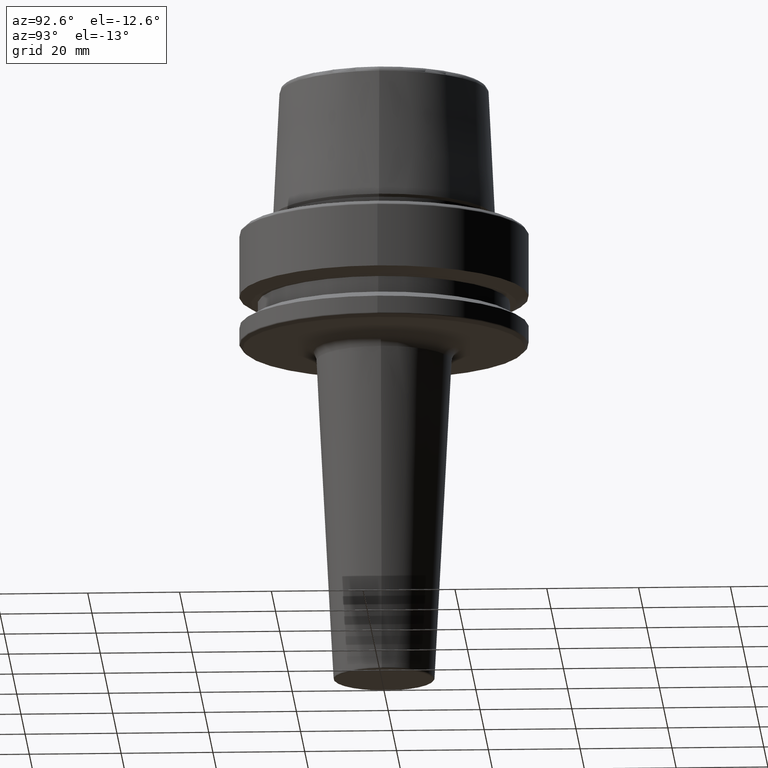
[diagram: clean part render]
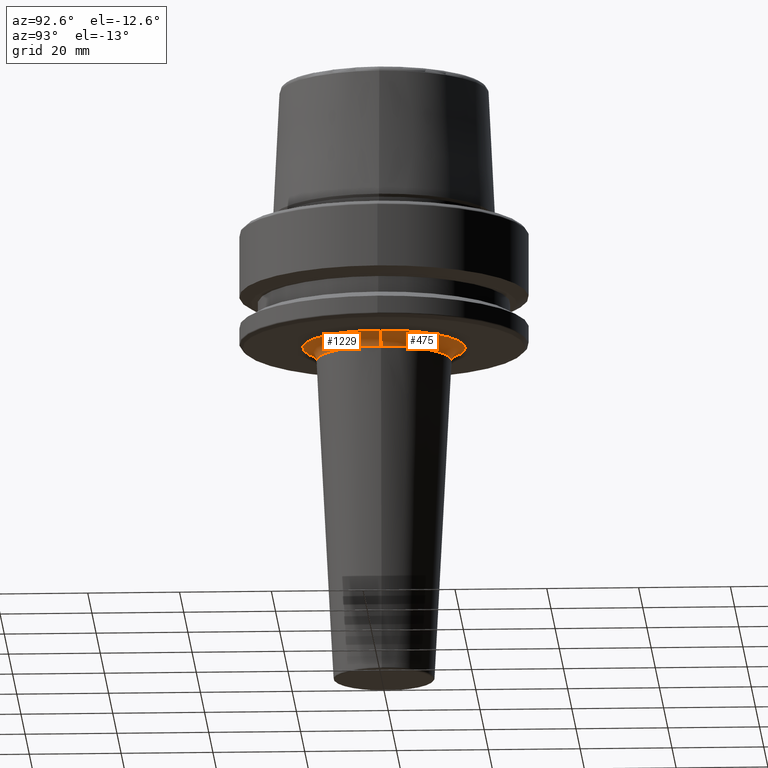
[diagram: same view with one multi-face feature highlighted, each face labeled with its STEP entity id]
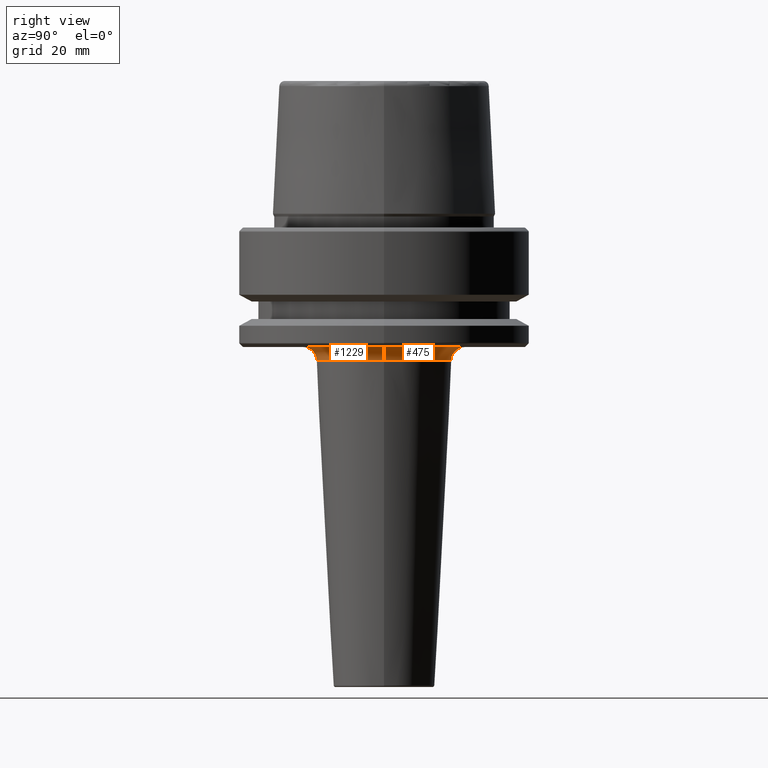
[diagram: same view with one multi-face feature highlighted, each face labeled with its STEP entity id]
A machine part, auxiliary view. The highlighted faces form ONE feature: a constant-radius fillet chain: 2 tangent blend faces with common blend radius 3 mm. The faces share edges in the B-rep.
A second angle (right view) of the same feature is appended — it is thin or edge-on in the first view.
Their STEP definitions:
[1] entity #475 (Torus):
#12 = EDGE_LOOP ( 'NONE', ( #120, #148, #1257, #715 ) ) ;
#48 = EDGE_CURVE ( 'NONE', #471, #1074, #566, .T. ) ;
#54 = CARTESIAN_POINT ( 'NONE',  ( 0.0000000000000000000, 0.0000000000000000000, -28.99999999999999600 ) ) ;
#73 = DIRECTION ( 'NONE',  ( 1.000000000000000000, 0.0000000000000000000, 0.0000000000000000000 ) ) ;
#120 = ORIENTED_EDGE ( 'NONE', *, *, #1073, .F. ) ;
#148 = ORIENTED_EDGE ( 'NONE', *, *, #956, .F. ) ;
#225 = CIRCLE ( 'NONE', #1255, 3.000000000000002700 ) ;
#258 = CARTESIAN_POINT ( 'NONE',  ( 17.72506936708969900, 0.0000000000000000000, -28.99999999999999600 ) ) ;
#295 = CARTESIAN_POINT ( 'NONE',  ( 14.72918076282597600, 0.0000000000000000000, -28.84299213127116700 ) ) ;
#373 = DIRECTION ( 'NONE',  ( 1.000000000000000000, 0.0000000000000000000, 0.0000000000000000000 ) ) ;
#381 = DIRECTION ( 'NONE',  ( 1.224646799147353200E-016, 1.000000000000000000, 0.0000000000000000000 ) ) ;
#399 = DIRECTION ( 'NONE',  ( -1.000000000000000000, 1.224646799147353500E-016, 0.0000000000000000000 ) ) ;
#403 = VERTEX_POINT ( 'NONE', #677 ) ;
#409 = CARTESIAN_POINT ( 'NONE',  ( -17.72506936708969900, 2.170694946507120400E-015, -28.99999999999999600 ) ) ;
#410 = CIRCLE ( 'NONE', #515, 2.999999999999999100 ) ;
#468 = CARTESIAN_POINT ( 'NONE',  ( -14.72918076282597600, 1.803804407525760100E-015, -28.84299213127116700 ) ) ;
#471 = VERTEX_POINT ( 'NONE', #468 ) ;
#475 = ADVANCED_FACE ( 'NONE', ( #670 ), #496, .F. ) ;
#496 = TOROIDAL_SURFACE ( 'NONE', #1168, 17.72506936708969900, 3.000000000000000000 ) ;
#504 = DIRECTION ( 'NONE',  ( 0.0000000000000000000, 0.0000000000000000000, -1.000000000000000000 ) ) ;
#508 = AXIS2_PLACEMENT_3D ( 'NONE', #596, #934, #373 ) ;
#515 = AXIS2_PLACEMENT_3D ( 'NONE', #409, #381, #399 ) ;
#566 = CIRCLE ( 'NONE', #508, 14.72918076282597800 ) ;
#571 = CARTESIAN_POINT ( 'NONE',  ( -17.72506936708969900, 2.170694946507120400E-015, -26.00000000000000400 ) ) ;
#596 = CARTESIAN_POINT ( 'NONE',  ( 0.0000000000000000000, 0.0000000000000000000, -28.84299213127116700 ) ) ;
#599 = VERTEX_POINT ( 'NONE', #571 ) ;
#644 = EDGE_CURVE ( 'NONE', #403, #1074, #225, .T. ) ;
#670 = FACE_OUTER_BOUND ( 'NONE', #12, .T. ) ;
#677 = CARTESIAN_POINT ( 'NONE',  ( 17.72506936708969900, 0.0000000000000000000, -26.00000000000000400 ) ) ;
#715 = ORIENTED_EDGE ( 'NONE', *, *, #48, .F. ) ;
#722 = CARTESIAN_POINT ( 'NONE',  ( 0.0000000000000000000, 0.0000000000000000000, -26.00000000000000700 ) ) ;
#798 = AXIS2_PLACEMENT_3D ( 'NONE', #722, #807, #823 ) ;
#807 = DIRECTION ( 'NONE',  ( -0.0000000000000000000, -0.0000000000000000000, 1.000000000000000000 ) ) ;
#823 = DIRECTION ( 'NONE',  ( 1.000000000000000000, 0.0000000000000000000, 0.0000000000000000000 ) ) ;
#854 = DIRECTION ( 'NONE',  ( 0.0000000000000000000, -1.000000000000000000, 0.0000000000000000000 ) ) ;
#934 = DIRECTION ( 'NONE',  ( 0.0000000000000000000, 0.0000000000000000000, -1.000000000000000000 ) ) ;
#956 = EDGE_CURVE ( 'NONE', #403, #599, #1209, .T. ) ;
#1073 = EDGE_CURVE ( 'NONE', #599, #471, #410, .T. ) ;
#1074 = VERTEX_POINT ( 'NONE', #295 ) ;
#1119 = DIRECTION ( 'NONE',  ( -0.0000000000000000000, -0.0000000000000000000, 1.000000000000000000 ) ) ;
#1168 = AXIS2_PLACEMENT_3D ( 'NONE', #54, #1119, #73 ) ;
#1209 = CIRCLE ( 'NONE', #798, 17.72506936708969900 ) ;
#1255 = AXIS2_PLACEMENT_3D ( 'NONE', #258, #854, #504 ) ;
#1257 = ORIENTED_EDGE ( 'NONE', *, *, #644, .T. ) ;
[2] entity #1229 (Torus):
#57 = DIRECTION ( 'NONE',  ( 0.0000000000000000000, 0.0000000000000000000, -1.000000000000000000 ) ) ;
#174 = ORIENTED_EDGE ( 'NONE', *, *, #1073, .T. ) ;
#208 = CIRCLE ( 'NONE', #765, 17.72506936708969900 ) ;
#225 = CIRCLE ( 'NONE', #1255, 3.000000000000002700 ) ;
#229 = ORIENTED_EDGE ( 'NONE', *, *, #550, .F. ) ;
#243 = EDGE_LOOP ( 'NONE', ( #229, #174, #518, #713 ) ) ;
#258 = CARTESIAN_POINT ( 'NONE',  ( 17.72506936708969900, 0.0000000000000000000, -28.99999999999999600 ) ) ;
#295 = CARTESIAN_POINT ( 'NONE',  ( 14.72918076282597600, 0.0000000000000000000, -28.84299213127116700 ) ) ;
#305 = TOROIDAL_SURFACE ( 'NONE', #1217, 17.72506936708969900, 3.000000000000000000 ) ;
#381 = DIRECTION ( 'NONE',  ( 1.224646799147353200E-016, 1.000000000000000000, 0.0000000000000000000 ) ) ;
#388 = DIRECTION ( 'NONE',  ( 1.000000000000000000, 0.0000000000000000000, 0.0000000000000000000 ) ) ;
#399 = DIRECTION ( 'NONE',  ( -1.000000000000000000, 1.224646799147353500E-016, 0.0000000000000000000 ) ) ;
#403 = VERTEX_POINT ( 'NONE', #677 ) ;
#409 = CARTESIAN_POINT ( 'NONE',  ( -17.72506936708969900, 2.170694946507120400E-015, -28.99999999999999600 ) ) ;
#410 = CIRCLE ( 'NONE', #515, 2.999999999999999100 ) ;
#424 = CIRCLE ( 'NONE', #617, 14.72918076282597800 ) ;
#464 = CARTESIAN_POINT ( 'NONE',  ( 0.0000000000000000000, 0.0000000000000000000, -28.84299213127116700 ) ) ;
#468 = CARTESIAN_POINT ( 'NONE',  ( -14.72918076282597600, 1.803804407525760100E-015, -28.84299213127116700 ) ) ;
#471 = VERTEX_POINT ( 'NONE', #468 ) ;
#504 = DIRECTION ( 'NONE',  ( 0.0000000000000000000, 0.0000000000000000000, -1.000000000000000000 ) ) ;
#507 = CARTESIAN_POINT ( 'NONE',  ( 0.0000000000000000000, 0.0000000000000000000, -28.99999999999999600 ) ) ;
#515 = AXIS2_PLACEMENT_3D ( 'NONE', #409, #381, #399 ) ;
#518 = ORIENTED_EDGE ( 'NONE', *, *, #535, .F. ) ;
#535 = EDGE_CURVE ( 'NONE', #1074, #471, #424, .T. ) ;
#550 = EDGE_CURVE ( 'NONE', #599, #403, #208, .T. ) ;
#571 = CARTESIAN_POINT ( 'NONE',  ( -17.72506936708969900, 2.170694946507120400E-015, -26.00000000000000400 ) ) ;
#577 = CARTESIAN_POINT ( 'NONE',  ( 0.0000000000000000000, 0.0000000000000000000, -26.00000000000000700 ) ) ;
#599 = VERTEX_POINT ( 'NONE', #571 ) ;
#617 = AXIS2_PLACEMENT_3D ( 'NONE', #464, #57, #648 ) ;
#644 = EDGE_CURVE ( 'NONE', #403, #1074, #225, .T. ) ;
#648 = DIRECTION ( 'NONE',  ( 1.000000000000000000, 0.0000000000000000000, 0.0000000000000000000 ) ) ;
#677 = CARTESIAN_POINT ( 'NONE',  ( 17.72506936708969900, 0.0000000000000000000, -26.00000000000000400 ) ) ;
#713 = ORIENTED_EDGE ( 'NONE', *, *, #644, .F. ) ;
#737 = FACE_OUTER_BOUND ( 'NONE', #243, .T. ) ;
#752 = DIRECTION ( 'NONE',  ( 1.000000000000000000, 0.0000000000000000000, 0.0000000000000000000 ) ) ;
#765 = AXIS2_PLACEMENT_3D ( 'NONE', #577, #1134, #752 ) ;
#854 = DIRECTION ( 'NONE',  ( 0.0000000000000000000, -1.000000000000000000, 0.0000000000000000000 ) ) ;
#1073 = EDGE_CURVE ( 'NONE', #599, #471, #410, .T. ) ;
#1074 = VERTEX_POINT ( 'NONE', #295 ) ;
#1134 = DIRECTION ( 'NONE',  ( -0.0000000000000000000, -0.0000000000000000000, 1.000000000000000000 ) ) ;
#1178 = DIRECTION ( 'NONE',  ( -0.0000000000000000000, -0.0000000000000000000, 1.000000000000000000 ) ) ;
#1217 = AXIS2_PLACEMENT_3D ( 'NONE', #507, #1178, #388 ) ;
#1229 = ADVANCED_FACE ( 'NONE', ( #737 ), #305, .F. ) ;
#1255 = AXIS2_PLACEMENT_3D ( 'NONE', #258, #854, #504 ) ;